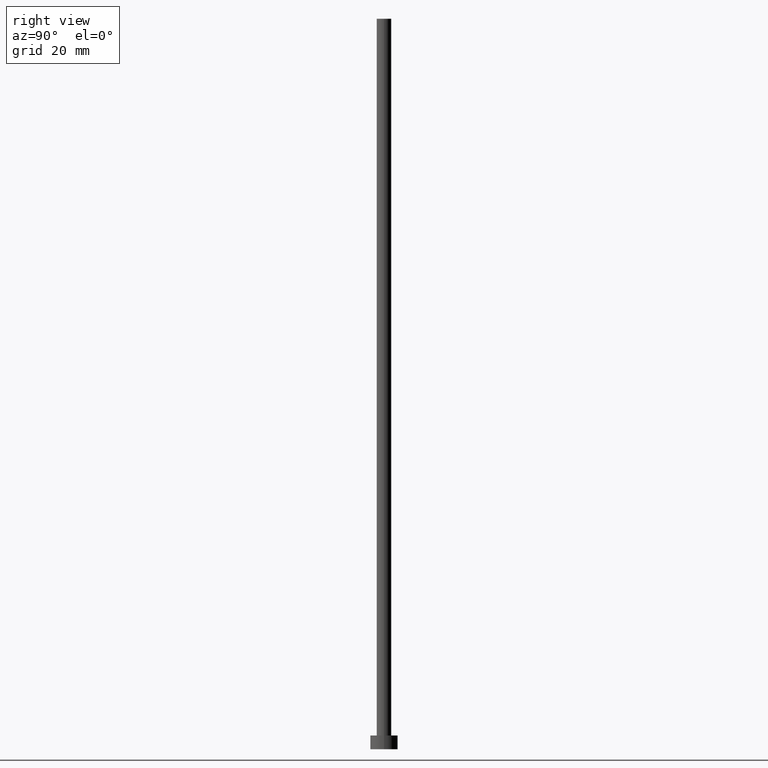
[diagram: clean part render]
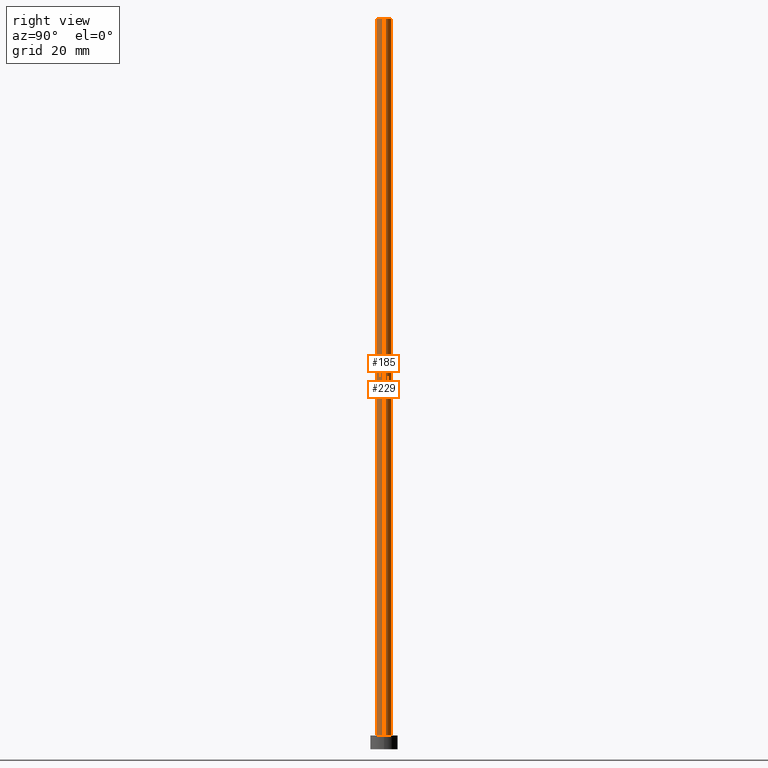
[diagram: same view with one multi-face feature highlighted, each face labeled with its STEP entity id]
A machine part, right view. The highlighted faces form ONE feature: a constant-radius fillet chain: 2 tangent blend faces with common blend radius 1.6 mm. The faces share edges in the B-rep.
Their STEP definitions:
[1] entity #185 (Cylinder):
#2 = DIRECTION ( 'NONE',  ( -0.000000000000000000, -0.000000000000000000, -1.000000000000000000 ) ) ;
#10 = EDGE_LOOP ( 'NONE', ( #34, #55, #234, #210 ) ) ;
#21 = DIRECTION ( 'NONE',  ( -0.000000000000000000, -0.000000000000000000, -1.000000000000000000 ) ) ;
#22 = EDGE_CURVE ( 'NONE', #73, #172, #96, .T. ) ;
#34 = ORIENTED_EDGE ( 'NONE', *, *, #153, .F. ) ;
#40 = CARTESIAN_POINT ( 'NONE',  ( -1.600000000000000089, 0.000000000000000000, 3.000000000000000000 ) ) ;
#41 = DIRECTION ( 'NONE',  ( 1.000000000000000000, 0.000000000000000000, 0.000000000000000000 ) ) ;
#43 = CARTESIAN_POINT ( 'NONE',  ( -1.600000000000000089, 0.000000000000000000, 160.0000000000000000 ) ) ;
#52 = CIRCLE ( 'NONE', #226, 1.600000000000000089 ) ;
#55 = ORIENTED_EDGE ( 'NONE', *, *, #251, .F. ) ;
#62 = LINE ( 'NONE', #138, #148 ) ;
#71 = DIRECTION ( 'NONE',  ( -0.000000000000000000, -0.000000000000000000, -1.000000000000000000 ) ) ;
#72 = AXIS2_PLACEMENT_3D ( 'NONE', #137, #197, #41 ) ;
#73 = VERTEX_POINT ( 'NONE', #43 ) ;
#81 = CARTESIAN_POINT ( 'NONE',  ( 0.000000000000000000, 0.000000000000000000, 160.0000000000000000 ) ) ;
#96 = LINE ( 'NONE', #154, #190 ) ;
#116 = AXIS2_PLACEMENT_3D ( 'NONE', #196, #21, #193 ) ;
#127 = DIRECTION ( 'NONE',  ( 1.000000000000000000, 0.000000000000000000, 0.000000000000000000 ) ) ;
#137 = CARTESIAN_POINT ( 'NONE',  ( 0.000000000000000000, 0.000000000000000000, 3.000000000000000000 ) ) ;
#138 = CARTESIAN_POINT ( 'NONE',  ( 1.600000000000000089, 1.959434878635765230E-16, 160.0000000000000000 ) ) ;
#140 = FACE_OUTER_BOUND ( 'NONE', #10, .T. ) ;
#148 = VECTOR ( 'NONE', #2, 1000.000000000000000 ) ;
#153 = EDGE_CURVE ( 'NONE', #227, #228, #62, .T. ) ;
#154 = CARTESIAN_POINT ( 'NONE',  ( -1.600000000000000089, 0.000000000000000000, 160.0000000000000000 ) ) ;
#158 = DIRECTION ( 'NONE',  ( 0.000000000000000000, 0.000000000000000000, 1.000000000000000000 ) ) ;
#159 = EDGE_CURVE ( 'NONE', #172, #228, #181, .T. ) ;
#172 = VERTEX_POINT ( 'NONE', #40 ) ;
#174 = CARTESIAN_POINT ( 'NONE',  ( 1.600000000000000089, 1.959434878635765230E-16, 160.0000000000000000 ) ) ;
#181 = CIRCLE ( 'NONE', #72, 1.600000000000000089 ) ;
#185 = ADVANCED_FACE ( 'NONE', ( #140 ), #236, .T. ) ;
#190 = VECTOR ( 'NONE', #71, 1000.000000000000000 ) ;
#193 = DIRECTION ( 'NONE',  ( -1.000000000000000000, 0.000000000000000000, 0.000000000000000000 ) ) ;
#196 = CARTESIAN_POINT ( 'NONE',  ( 0.000000000000000000, 0.000000000000000000, 160.0000000000000000 ) ) ;
#197 = DIRECTION ( 'NONE',  ( 0.000000000000000000, 0.000000000000000000, 1.000000000000000000 ) ) ;
#198 = CARTESIAN_POINT ( 'NONE',  ( 1.600000000000000089, 1.959434878635765230E-16, 3.000000000000000000 ) ) ;
#210 = ORIENTED_EDGE ( 'NONE', *, *, #159, .T. ) ;
#226 = AXIS2_PLACEMENT_3D ( 'NONE', #81, #158, #127 ) ;
#227 = VERTEX_POINT ( 'NONE', #174 ) ;
#228 = VERTEX_POINT ( 'NONE', #198 ) ;
#234 = ORIENTED_EDGE ( 'NONE', *, *, #22, .T. ) ;
#236 = CYLINDRICAL_SURFACE ( 'NONE', #116, 1.600000000000000089 ) ;
#251 = EDGE_CURVE ( 'NONE', #73, #227, #52, .T. ) ;
[2] entity #229 (Cylinder):
#2 = DIRECTION ( 'NONE',  ( -0.000000000000000000, -0.000000000000000000, -1.000000000000000000 ) ) ;
#17 = DIRECTION ( 'NONE',  ( -1.000000000000000000, 0.000000000000000000, 0.000000000000000000 ) ) ;
#22 = EDGE_CURVE ( 'NONE', #73, #172, #96, .T. ) ;
#32 = ORIENTED_EDGE ( 'NONE', *, *, #153, .T. ) ;
#40 = CARTESIAN_POINT ( 'NONE',  ( -1.600000000000000089, 0.000000000000000000, 3.000000000000000000 ) ) ;
#43 = CARTESIAN_POINT ( 'NONE',  ( -1.600000000000000089, 0.000000000000000000, 160.0000000000000000 ) ) ;
#54 = ORIENTED_EDGE ( 'NONE', *, *, #92, .T. ) ;
#56 = AXIS2_PLACEMENT_3D ( 'NONE', #85, #252, #17 ) ;
#62 = LINE ( 'NONE', #138, #148 ) ;
#71 = DIRECTION ( 'NONE',  ( -0.000000000000000000, -0.000000000000000000, -1.000000000000000000 ) ) ;
#73 = VERTEX_POINT ( 'NONE', #43 ) ;
#85 = CARTESIAN_POINT ( 'NONE',  ( 0.000000000000000000, 0.000000000000000000, 160.0000000000000000 ) ) ;
#92 = EDGE_CURVE ( 'NONE', #228, #172, #101, .T. ) ;
#96 = LINE ( 'NONE', #154, #190 ) ;
#101 = CIRCLE ( 'NONE', #186, 1.600000000000000089 ) ;
#105 = DIRECTION ( 'NONE',  ( 0.000000000000000000, 0.000000000000000000, 1.000000000000000000 ) ) ;
#106 = CYLINDRICAL_SURFACE ( 'NONE', #56, 1.600000000000000089 ) ;
#121 = FACE_OUTER_BOUND ( 'NONE', #132, .T. ) ;
#122 = AXIS2_PLACEMENT_3D ( 'NONE', #238, #239, #161 ) ;
#124 = DIRECTION ( 'NONE',  ( 1.000000000000000000, 0.000000000000000000, 0.000000000000000000 ) ) ;
#132 = EDGE_LOOP ( 'NONE', ( #170, #32, #54, #149 ) ) ;
#138 = CARTESIAN_POINT ( 'NONE',  ( 1.600000000000000089, 1.959434878635765230E-16, 160.0000000000000000 ) ) ;
#148 = VECTOR ( 'NONE', #2, 1000.000000000000000 ) ;
#149 = ORIENTED_EDGE ( 'NONE', *, *, #22, .F. ) ;
#153 = EDGE_CURVE ( 'NONE', #227, #228, #62, .T. ) ;
#154 = CARTESIAN_POINT ( 'NONE',  ( -1.600000000000000089, 0.000000000000000000, 160.0000000000000000 ) ) ;
#161 = DIRECTION ( 'NONE',  ( 1.000000000000000000, 0.000000000000000000, 0.000000000000000000 ) ) ;
#170 = ORIENTED_EDGE ( 'NONE', *, *, #204, .F. ) ;
#172 = VERTEX_POINT ( 'NONE', #40 ) ;
#174 = CARTESIAN_POINT ( 'NONE',  ( 1.600000000000000089, 1.959434878635765230E-16, 160.0000000000000000 ) ) ;
#186 = AXIS2_PLACEMENT_3D ( 'NONE', #215, #105, #124 ) ;
#190 = VECTOR ( 'NONE', #71, 1000.000000000000000 ) ;
#198 = CARTESIAN_POINT ( 'NONE',  ( 1.600000000000000089, 1.959434878635765230E-16, 3.000000000000000000 ) ) ;
#204 = EDGE_CURVE ( 'NONE', #227, #73, #209, .T. ) ;
#209 = CIRCLE ( 'NONE', #122, 1.600000000000000089 ) ;
#215 = CARTESIAN_POINT ( 'NONE',  ( 0.000000000000000000, 0.000000000000000000, 3.000000000000000000 ) ) ;
#227 = VERTEX_POINT ( 'NONE', #174 ) ;
#228 = VERTEX_POINT ( 'NONE', #198 ) ;
#229 = ADVANCED_FACE ( 'NONE', ( #121 ), #106, .T. ) ;
#238 = CARTESIAN_POINT ( 'NONE',  ( 0.000000000000000000, 0.000000000000000000, 160.0000000000000000 ) ) ;
#239 = DIRECTION ( 'NONE',  ( 0.000000000000000000, 0.000000000000000000, 1.000000000000000000 ) ) ;
#252 = DIRECTION ( 'NONE',  ( -0.000000000000000000, -0.000000000000000000, -1.000000000000000000 ) ) ;